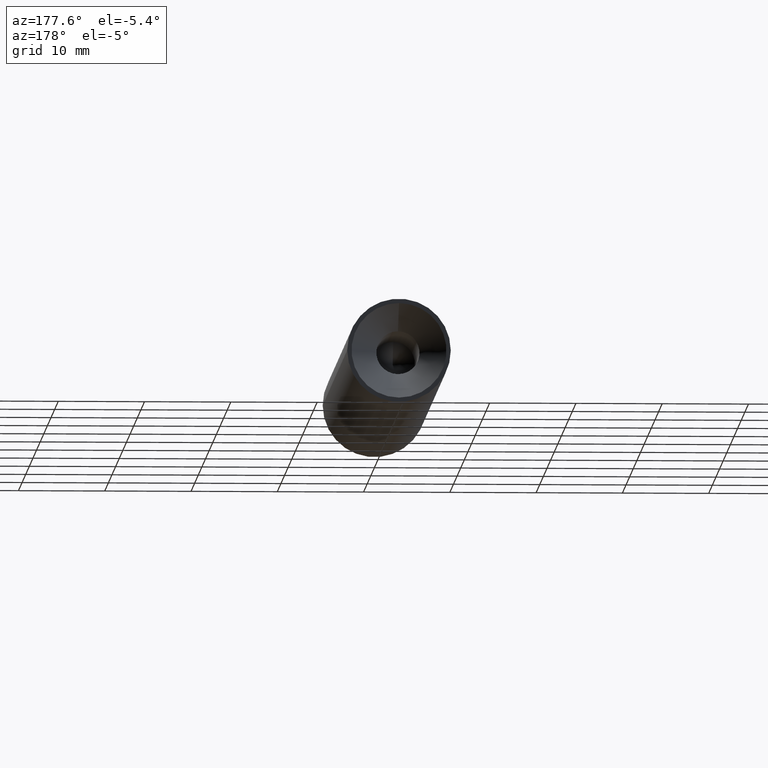
[diagram: clean part render]
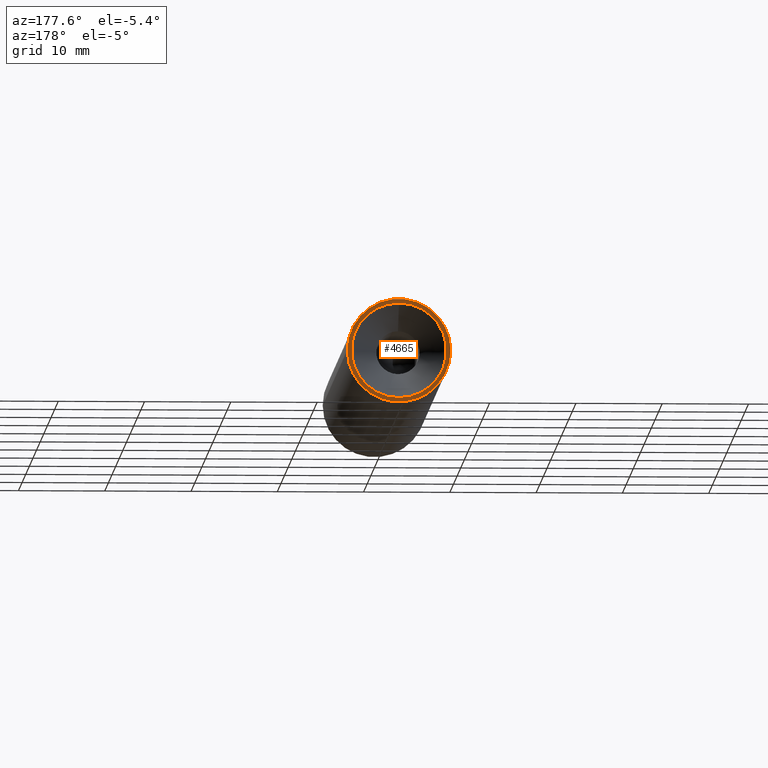
[diagram: same view with one face highlighted and labeled with its STEP entity id]
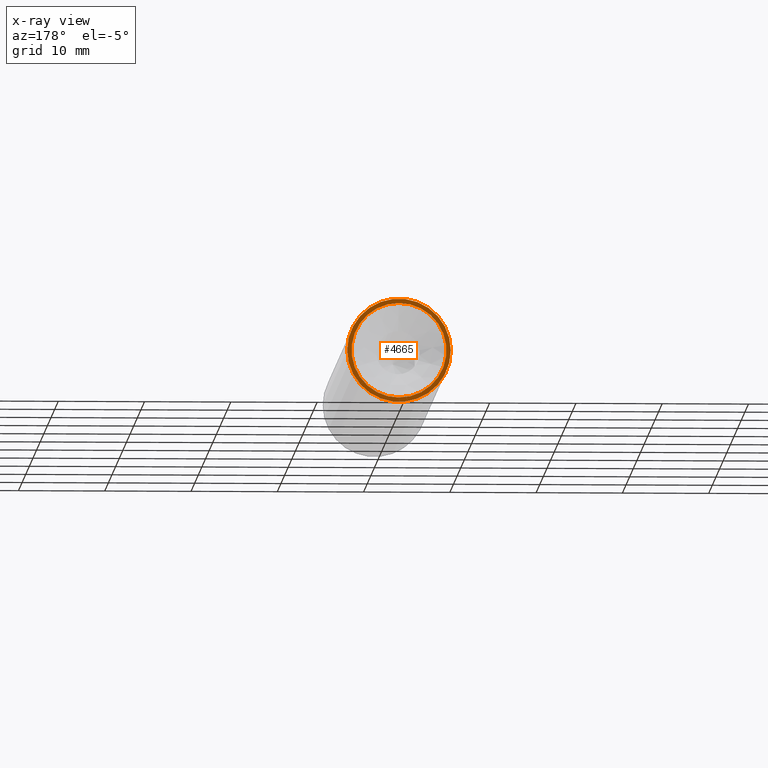
[diagram: x-ray of the same camera — body ghosted, the highlighted face saturated]
A machine part, auxiliary view. The second image highlights one B-rep face of the part: STEP entity #4665.
The next image is the same camera in x-ray: the body ghosted, the highlighted face saturated — about 0% of this face is hidden behind the body in this view.
In plain terms, the highlighted planar face has unit normal (-0, 1, 0).
Its self-contained STEP definition (entity closure, byte-faithful):
#1962 = DIRECTION ( 'NONE',  ( -2.320397523358115259E-33, 1.000000000000000000, 0.000000000000000000 ) ) ;
#2358 = CARTESIAN_POINT ( 'NONE',  ( -1.577870315883518554E-31, 68.00000000000000000, 0.000000000000000000 ) ) ;
#2419 = AXIS2_PLACEMENT_3D ( 'NONE', #9734, #9873, #3513 ) ;
#2934 = ORIENTED_EDGE ( 'NONE', *, *, #5676, .F. ) ;
#3513 = DIRECTION ( 'NONE',  ( 1.000000000000000000, 0.000000000000000000, 0.000000000000000000 ) ) ;
#3521 = DIRECTION ( 'NONE',  ( 0.000000000000000000, 0.000000000000000000, 1.000000000000000000 ) ) ;
#4255 = EDGE_LOOP ( 'NONE', ( #2934 ) ) ;
#4665 = ADVANCED_FACE ( 'NONE', ( #5012, #9304 ), #8343, .T. ) ;
#5012 = FACE_BOUND ( 'NONE', #11190, .T. ) ;
#5676 = EDGE_CURVE ( 'NONE', #9073, #9073, #7490, .T. ) ;
#7019 = AXIS2_PLACEMENT_3D ( 'NONE', #13545, #1962, #8244 ) ;
#7490 = CIRCLE ( 'NONE', #2419, 5.999999999999997335 ) ;
#7520 = CARTESIAN_POINT ( 'NONE',  ( -1.577870315883518554E-31, 68.00000000000000000, 5.500000000000000000 ) ) ;
#7930 = VERTEX_POINT ( 'NONE', #7520 ) ;
#8244 = DIRECTION ( 'NONE',  ( -1.000000000000000000, -2.320397523358115259E-33, 0.000000000000000000 ) ) ;
#8343 = PLANE ( 'NONE',  #7019 ) ;
#8757 = EDGE_CURVE ( 'NONE', #7930, #7930, #9728, .T. ) ;
#8830 = ORIENTED_EDGE ( 'NONE', *, *, #8757, .F. ) ;
#9073 = VERTEX_POINT ( 'NONE', #9751 ) ;
#9304 = FACE_OUTER_BOUND ( 'NONE', #4255, .T. ) ;
#9728 = CIRCLE ( 'NONE', #11316, 5.500000000000000000 ) ;
#9734 = CARTESIAN_POINT ( 'NONE',  ( 0.000000000000000000, 68.00000000000000000, 0.000000000000000000 ) ) ;
#9751 = CARTESIAN_POINT ( 'NONE',  ( 5.999999999999997335, 68.00000000000000000, 0.000000000000000000 ) ) ;
#9786 = DIRECTION ( 'NONE',  ( -0.000000000000000000, 1.000000000000000000, -0.000000000000000000 ) ) ;
#9873 = DIRECTION ( 'NONE',  ( 2.320397523358115259E-33, -1.000000000000000000, -0.000000000000000000 ) ) ;
#11190 = EDGE_LOOP ( 'NONE', ( #8830 ) ) ;
#11316 = AXIS2_PLACEMENT_3D ( 'NONE', #2358, #9786, #3521 ) ;
#13545 = CARTESIAN_POINT ( 'NONE',  ( 1.615273399921941955E-65, 68.00000000000000000, 0.000000000000000000 ) ) ;